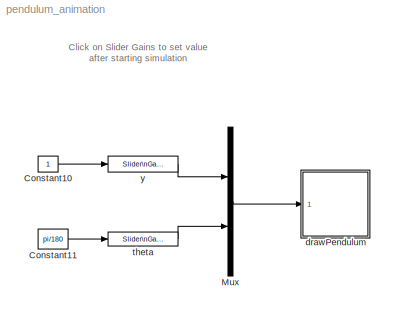
MODEL pendulum_animation
KIND model
BLOCK [Constant] Constant10
  OutDataType = sfix(16)
  OutScaling = 2^0
  SID = 1
BLOCK [Constant] Constant11
  OutDataType = sfix(16)
  OutScaling = 2^0
  SID = 2
  Value = pi/180
BLOCK [Mux] Mux
  DisplayOption = bar
  Inputs = 2
  Ports = [2, 1]
  SID = 3
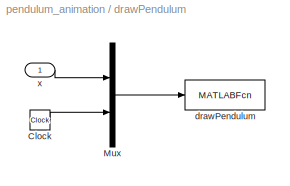
BLOCK [SubSystem] drawPendulum
  FunctionWithSeparateData = off
  MaskDisplay = image(imread('tv.jpg'))
  MaskHideContents = off
  MaskIconFrame = on
  MaskIconOpaque = on
  MaskIconRotate = none
  MaskIconUnits = autoscale
  MaskInitialization = % drawing parameters\nL = 1;\ngap = 0.01;\nwidth = 1.0;\nheight = 0.1;\n
  MaskPortRotate = default
  MinAlgLoopOccurrences = off
  Opaque = off
  Ports = [1]
  PropExecContextOutsideSubsystem = off
  RTWSystemCode = Auto
  RequestExecContextInheritance = off
  SID = 4
BLOCK [Clock] drawPendulum/Clock
  Decimation = 10
  SID = 6
BLOCK [Mux] drawPendulum/Mux
  DisplayOption = bar
  Inputs = 2
  Ports = [2, 1]
  SID = 7
BLOCK [MATLABFcn] drawPendulum/drawPendulum
  MATLABFcn = drawPendulum(u,L,gap,width,height)
  OutputDimensions = 0
  Ports = [1]
  SID = 8
  SampleTime = 0.1
BLOCK [Inport] drawPendulum/x
  IconDisplay = Port number
  SID = 5
BLOCK [Reference] theta  REF=simulink/Math\nOperations/Slider\nGain
  FunctionWithSeparateData = off
  Ports = [1, 1]
  RTWMemSecDataConstants = Inherit from model
  RTWMemSecDataInternal = Inherit from model
  RTWMemSecDataParameters = Inherit from model
  RTWMemSecFuncExecute = Inherit from model
  RTWMemSecFuncInitTerm = Inherit from model
  SID = 9
  ShowPortLabels = FromPortIcon
  SourceBlock = simulink/Math\nOperations/Slider\nGain
  SourceType = Slider Gain
  SystemSampleTime = -1
  gain = 21.6
  high = 180
  low = -180
BLOCK [Reference] y  REF=simulink/Math\nOperations/Slider\nGain
  FunctionWithSeparateData = off
  Ports = [1, 1]
  RTWMemSecDataConstants = Inherit from model
  RTWMemSecDataInternal = Inherit from model
  RTWMemSecDataParameters = Inherit from model
  RTWMemSecFuncExecute = Inherit from model
  RTWMemSecFuncInitTerm = Inherit from model
  SID = 10
  ShowPortLabels = FromPortIcon
  SourceBlock = simulink/Math\nOperations/Slider\nGain
  SourceType = Slider Gain
  SystemSampleTime = -1
  gain = 0.17087
  high = 3
  low = -3
ANNOTATION (root): Click on Slider Gains to set value \nafter starting simulation
LINE Constant10:1 -> y:1
LINE Constant11:1 -> theta:1
LINE Mux:1 -> drawPendulum:1
LINE drawPendulum/Clock:1 -> drawPendulum/Mux:2
LINE drawPendulum/Mux:1 -> drawPendulum/drawPendulum:1
LINE drawPendulum/x:1 -> drawPendulum/Mux:1
LINE theta:1 -> Mux:2
LINE y:1 -> Mux:1
